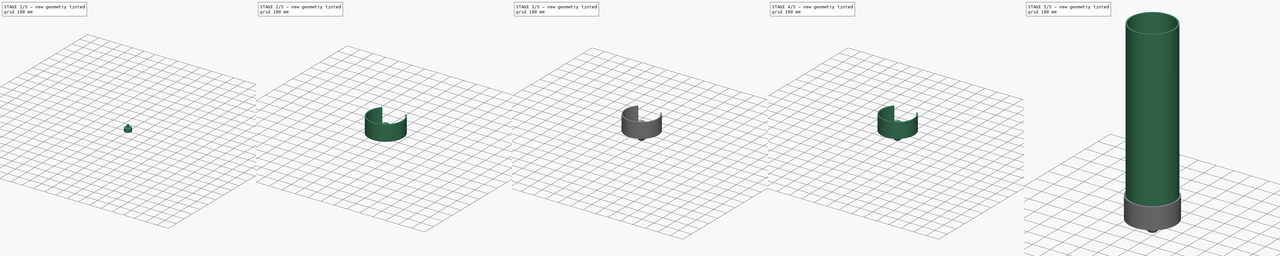
[diagram: build sequence overview — one tinted view per stage of 5, left to right]
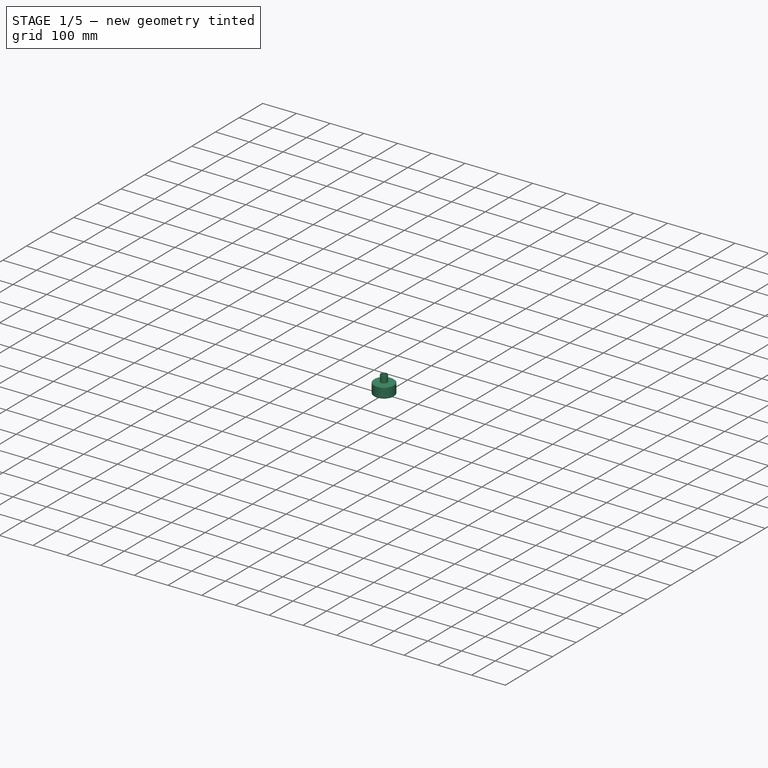
[diagram: stage 1 of 5 — iso view after this stage's code; geometry added in this stage tinted green]
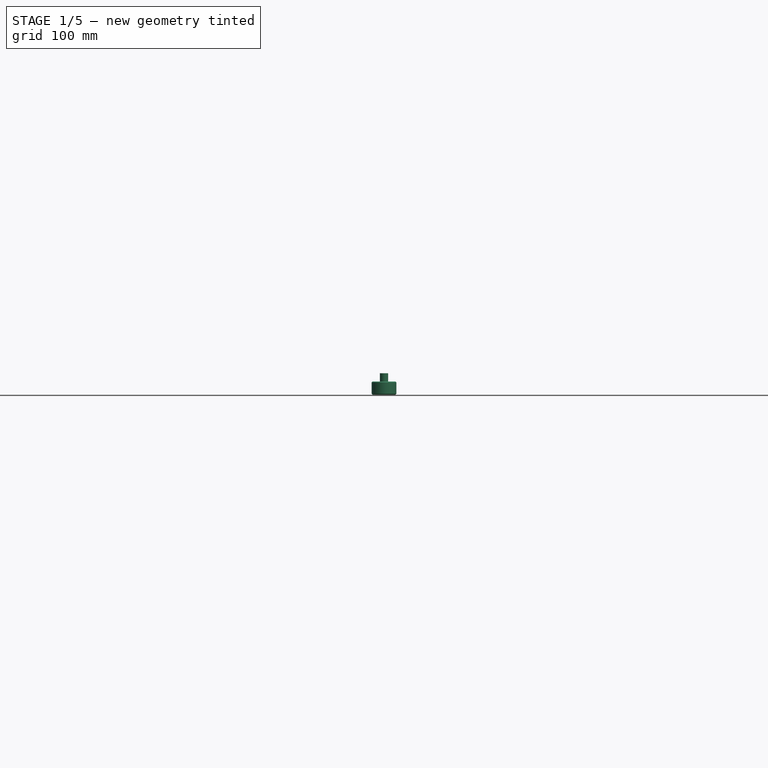
[diagram: stage 1 of 5 — front view after this stage's code; geometry added in this stage tinted green]
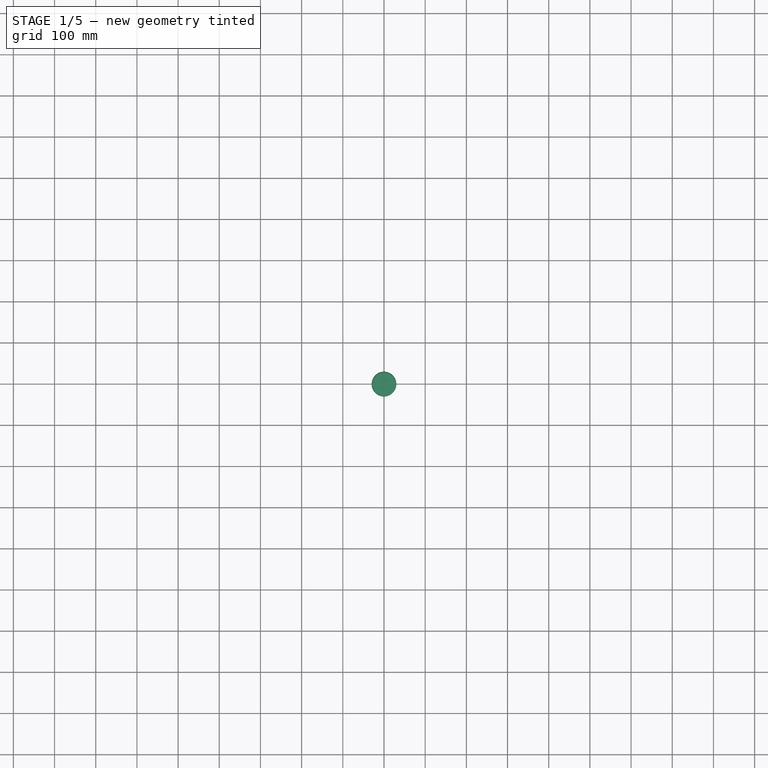
[diagram: stage 1 of 5 — top view after this stage's code; geometry added in this stage tinted green]
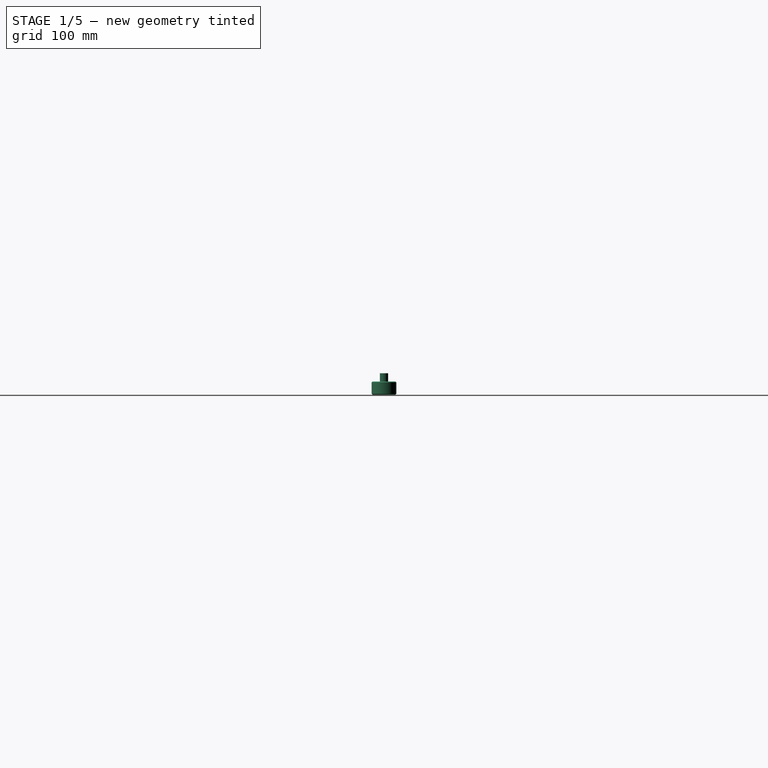
[diagram: stage 1 of 5 — right view after this stage's code; geometry added in this stage tinted green]
FCSTD DOCUMENT  (FreeCAD 0.18.4R)
Label: Assy2
License: All rights reserved
LicenseURL: http://en.wikipedia.org/wiki/All_rights_reserved
objects: PartDesign::Body×17, PartDesign::Pad×11, Sketcher::SketchObject×7, PartDesign::AdditiveCylinder×6, App::Part×6, PartDesign::SubtractiveCylinder×4, PartDesign::AdditiveSphere×4, PartDesign::Chamfer×4, Spreadsheet::Sheet×1
note: 78 computed .brp shape members not serialized (recipe doc carries the construction recipe); baked Part::Feature solids carry a one-line shape summary decoded from their .brp

FEATURE [PartDesign::Body] Body012  label="HV clamp lower"
  Group = -> [Pad004,Pad005]
  Origin = -> Origin018
  Placement = pos=(0,-187.7,-36) rot=(0,0,1;3.14159rad)
  Tip = -> Pad005
  expr: Placement.Base.y = -Spreadsheet.hv_clamp_socket_h - Spreadsheet.hv_clamp_h - Spreadsheet.pole_clamp_R
  expr: Placement.Base.z = -Spreadsheet.hv_clamp_l - Spreadsheet.hv_clamp_distance
FEATURE [App::Part] Part  label="Clamp_Pole"
  Group = -> [Body010,Body011,Body012]
  Origin = -> Origin
FEATURE [App::Part] Part002  label="Multiplyer_Stage_1"
  Group = -> [Part,Part001]
  Origin = -> Origin019
  Placement = pos=(0,0,0) rot=(0,0,1;-0.228406rad)
  expr: Placement.Rotation.Angle = Spreadsheet.stage_rotation
FEATURE [Sketcher::SketchObject] Sketch004
  MapMode = 5
  Placement = pos=(0,0,0) rot=(0,0,1;1.5708rad)
  expr: Constraints[1] = Spreadsheet.KG_D / 2 + (Spreadsheet.KG_D - Spreadsheet.KG_d) / 2
  expr: Constraints[0] = Spreadsheet.KG_d / 2 + (Spreadsheet.KG_D - Spreadsheet.KG_d) / 2
  sketch-geometry (4):
    g0: ArcOfCircle CenterX=0 CenterY=0 CenterZ=0 NormalX=0 NormalY=0 NormalZ=1 AngleXU=0 Radius=125 StartAngle=0.785398 EndAngle=5.49779
    g1: ArcOfCircle CenterX=0 CenterY=0 CenterZ=0 NormalX=0 NormalY=0 NormalZ=1 AngleXU=0 Radius=132.7 StartAngle=0.785398 EndAngle=5.49779
    g2: LineSegment StartX=88.3883 StartY=-88.3883 StartZ=0 EndX=93.8331 EndY=-93.8331 EndZ=0
    g3: LineSegment StartX=93.8331 StartY=93.8331 StartZ=0 EndX=88.3883 EndY=88.3883 EndZ=0
  constraints (12):
    c: Radius(g0) = 125
    c: Radius(g1) = 132.7
    c: Coincident(g-1,g0)
    c: Coincident(g0,g1)
    c: Coincident(g2,g0)
    c: Coincident(g2,g1)
    c: Coincident(g3,g1)
    c: Coincident(g3,g0)
    c: Angle(g3) = -2.35619
    c: Perpendicular(g0,g3)
    c: Angle(g2) = -0.785398
    c: Perpendicular(g0,g2)
FEATURE [PartDesign::AdditiveCylinder] Cylinder013
  Angle = 360
  AttacherType = Attacher::AttachEngine3D
  AttachmentOffset = pos=(0,0,16) rot=(0,0,1;0rad)
  Height = 20
  MapMode = 5
  Placement = pos=(0,0,16) rot=(0,0,1;0rad)
  Radius = 10
  Refine = true
  Support = -> [XY_Plane015]
  expr: AttachmentOffset.Base.z = Spreadsheet.murata_l / 2
  expr: Height = Spreadsheet.tube_l
  expr: Radius = Spreadsheet.tube_D / 2
FEATURE [PartDesign::SubtractiveCylinder] Cylinder012
  Angle = 360
  AttacherType = Attacher::AttachEngine3D
  AttachmentOffset = pos=(0,0,16) rot=(0,0,1;0rad)
  BaseFeature = -> Cylinder013
  Height = 20
  MapMode = 5
  Placement = pos=(0,0,16) rot=(0,0,1;0rad)
  Radius = 9
  Refine = true
  Support = -> [XY_Plane015]
  expr: Radius = Spreadsheet.tube_d / 2
  expr: Height = Spreadsheet.tube_l
  expr: AttachmentOffset.Base.z = Spreadsheet.murata_l / 2
FEATURE [PartDesign::Body] Body016  label="Sphere_upper001"
  Group = -> [Sphere005]
  Origin = -> Origin027
  Placement = pos=(0,0,34) rot=(0,0,1;0rad)
  Tip = -> Sphere005
  expr: Placement.Base.z = Spreadsheet.ball_steel_D / 2 - 1
FEATURE [PartDesign::AdditiveCylinder] Cylinder014
  Angle = 360
  AttacherType = Attacher::AttachEngine3D
  AttachmentOffset = pos=(0,0,-16) rot=(0,0,1;0rad)
  Height = 32
  MapMode = 5
  Placement = pos=(0,0,-16) rot=(0,0,1;0rad)
  Radius = 30
  Refine = true
  Support = -> [XY_Plane016]
  expr: AttachmentOffset.Base.z = -Spreadsheet.murata_l / 2
  expr: Height = Spreadsheet.murata_l
  expr: Radius = Spreadsheet.murata_D / 2
FEATURE [PartDesign::Chamfer] Chamfer002
  Base = -> Cylinder014 [Edge1]
  BaseFeature = -> Cylinder014
  Placement = pos=(0,0,-16) rot=(0,0,1;0rad)
  Size = 2
FEATURE [PartDesign::Body] Body017  label="Tube_lower001"
  Group = -> [Cylinder015,Cylinder011]
  Tip = -> Cylinder011
FEATURE [PartDesign::Body] Body018  label="Clamp_Body001"
  Group = -> [Sketch004,Pad007]
  Origin = -> Origin029
  Placement = pos=(0,0,-60) rot=(0,0,1;0rad)
  Tip = -> Pad007
  expr: Placement.Base.z = -Spreadsheet.pole_clamp_l / 2
FEATURE [PartDesign::Pad] Pad010
  Length = 16
  Length2 = 100
  Profile = -> Sketch006
  Refine = true
  Type = 0
  expr: Length = Spreadsheet.hv_clamp_l
FEATURE [PartDesign::Body] Body013  label="HV clamp lower001"
  Group = -> [Pad010,Pad009]
  Origin = -> Origin025
  Placement = pos=(0,-187.7,-36) rot=(0,0,1;3.14159rad)
  Tip = -> Pad009
  expr: Placement.Base.y = -Spreadsheet.hv_clamp_socket_h - Spreadsheet.hv_clamp_h - Spreadsheet.pole_clamp_R
  expr: Placement.Base.z = -Spreadsheet.hv_clamp_l - Spreadsheet.hv_clamp_distance
FEATURE [App::Part] Part004  label="Clamp_Pole001"
  Group = -> [Body018,Body015,Body013]
  Origin = -> Origin028
FEATURE [PartDesign::Chamfer] Chamfer003
  Base = -> Chamfer002 [Edge3]
  BaseFeature = -> Chamfer002
  Placement = pos=(0,0,-16) rot=(0,0,1;0rad)
  Size = 2
FEATURE [PartDesign::Body] Body019  label="Murata_C001"
  Group = -> [Cylinder014,Chamfer002,Chamfer003]
  Origin = -> Origin020
  Tip = -> Chamfer003
FEATURE [PartDesign::Body] Body020  label="Tuber_upper001"
  Group = -> [Cylinder013,Cylinder012]
  Origin = -> Origin023
  Tip = -> Cylinder012
FEATURE [App::Part] Part005  label="Capacitor_Element001"
  Group = -> [Body019,Body017,Body020,Body014,Body016]
  Origin = -> Origin024
  Placement = pos=(0,-187.7,0) rot=(0,0,1;0rad)
  expr: Placement.Base.y = -Spreadsheet.hv_clamp_socket_h - Spreadsheet.hv_clamp_h - Spreadsheet.pole_clamp_R
FEATURE [App::Part] Part003  label="Multiplyer_Stage_2"
  Group = -> [Part004,Part005]
  Origin = -> Origin022
  Placement = pos=(0,0,142) rot=(0,0,1;0.228406rad)
  expr: Placement.Base.z = Spreadsheet.stage_length
  expr: Placement.Rotation.Angle = -Spreadsheet.stage_rotation
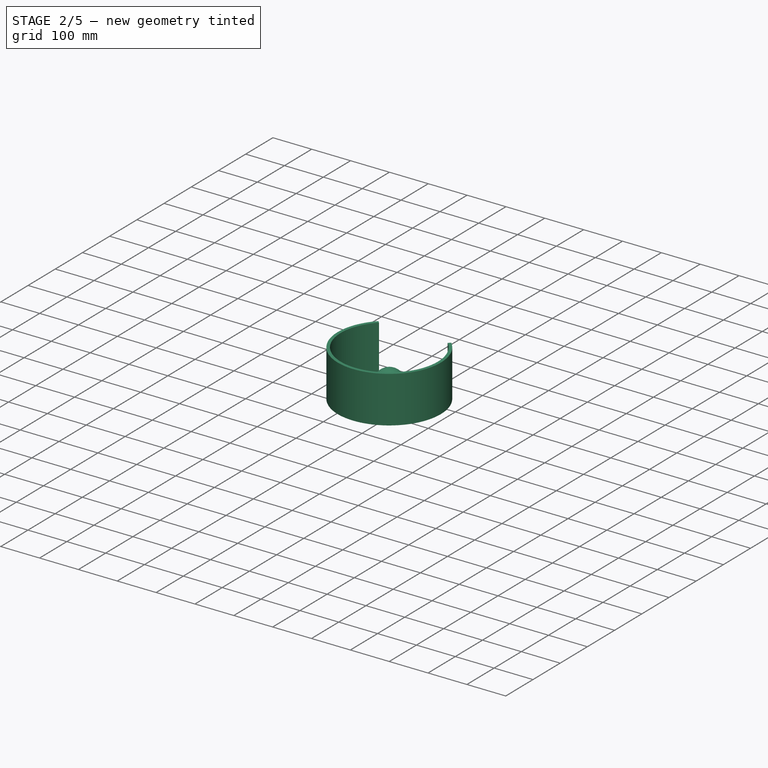
[diagram: stage 2 of 5 — iso view after this stage's code; geometry added in this stage tinted green]
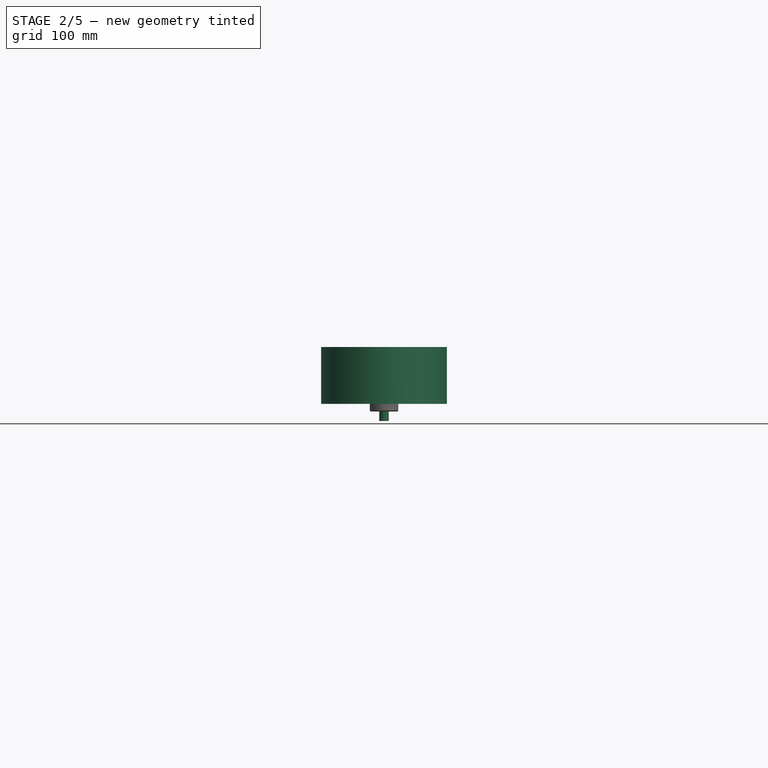
[diagram: stage 2 of 5 — front view after this stage's code; geometry added in this stage tinted green]
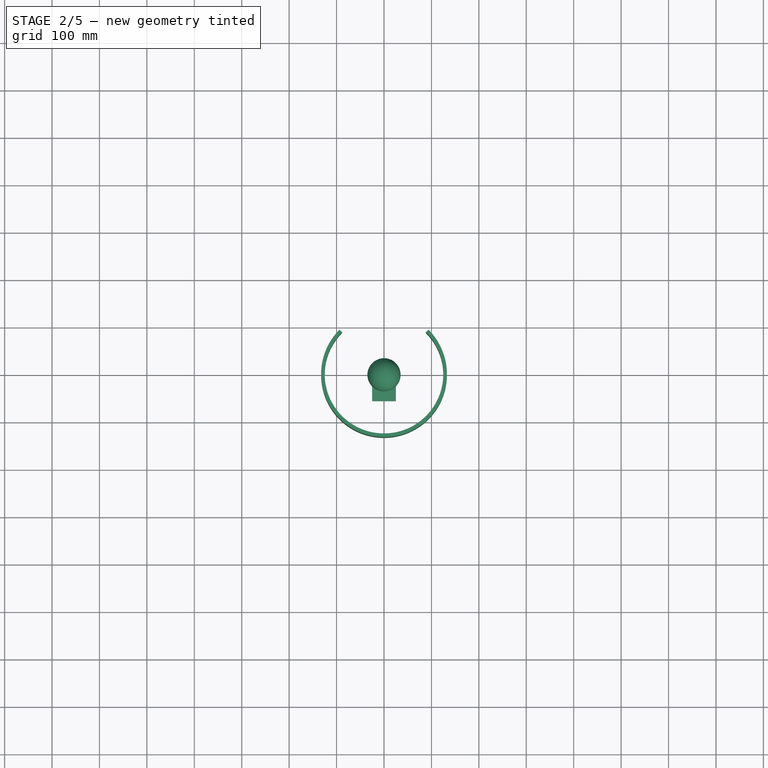
[diagram: stage 2 of 5 — top view after this stage's code; geometry added in this stage tinted green]
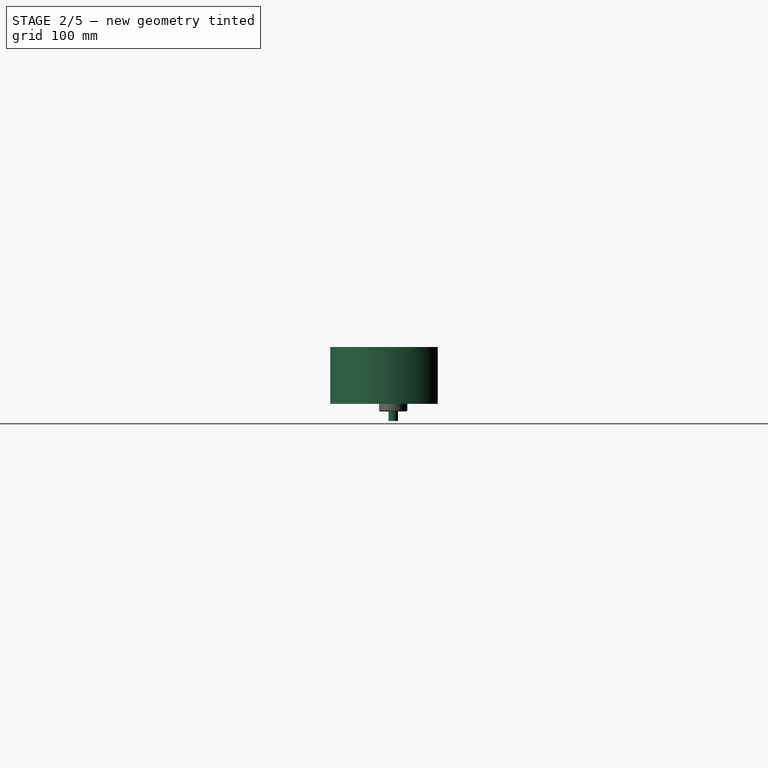
[diagram: stage 2 of 5 — right view after this stage's code; geometry added in this stage tinted green]
FEATURE [PartDesign::Pad] Pad007
  Length = 120
  Length2 = 100
  Placement = pos=(0,0,0) rot=(0,0,1;1.5708rad)
  Profile = -> Sketch004
  Refine = true
  Type = 0
  expr: Length = Spreadsheet.pole_clamp_l
FEATURE [PartDesign::Body] Body014  label="Sphere_lower001"
  Group = -> [Sphere004]
  Origin = -> Origin026
  Placement = pos=(0,0,-34) rot=(0,0,1;0rad)
  Tip = -> Sphere004
  expr: Placement.Base.z = -(Spreadsheet.ball_steel_D / 2 - 1)
FEATURE [Sketcher::SketchObject] Sketch006
  MapMode = 5
  Support = -> [XY_Plane017]
  expr: Constraints[23] = Spreadsheet.hv_clamp_h
  expr: Constraints[22] = Spreadsheet.hv_clamp_h
  expr: Constraints[21] = Spreadsheet.hv_clamp_h
  sketch-geometry (8):
    g0: LineSegment StartX=15 StartY=-20 StartZ=0 EndX=-15 EndY=-20 EndZ=0
    g1: LineSegment StartX=-15 StartY=-20 StartZ=0 EndX=-15 EndY=-1.78e-14 EndZ=0
    g2: LineSegment StartX=15 StartY=-20 StartZ=0 EndX=15 EndY=0 EndZ=0
    g3: LineSegment StartX=-11.1803 StartY=10 StartZ=0 EndX=-7.63657 EndY=6.45623 EndZ=0
    g4: LineSegment StartX=11.1803 StartY=10 StartZ=0 EndX=7.63657 EndY=6.45623 EndZ=0
    g5: ArcOfCircle CenterX=0 CenterY=0 CenterZ=0 NormalX=0 NormalY=0 NormalZ=1 AngleXU=0 Radius=15 StartAngle=0 EndAngle=0.729728
    g6: ArcOfCircle CenterX=0 CenterY=0 CenterZ=0 NormalX=0 NormalY=0 NormalZ=1 AngleXU=0 Radius=10 StartAngle=2.43975 EndAngle=6.98502
    g7: ArcOfCircle CenterX=0 CenterY=0 CenterZ=0 NormalX=0 NormalY=0 NormalZ=1 AngleXU=0 Radius=15 StartAngle=2.41186 EndAngle=3.14159
  constraints (24):
    c: Horizontal(g0)
    c: Distance(g0) = 30
    c: Distance(g3,g0) = 30
    c: Coincident(g1,g0)
    c: Vertical(g1)
    c: Coincident(g2,g0)
    c: Distance(g4,g0) = 30
    c: Angle(g3) = -0.785398
    c: Angle(g4) = -2.35619
    c: Coincident(g5,g4)
    c: Diameter(g5) = 30
    c: Vertical(g2)
    c: Coincident(g5,g2)
    c: Coincident(g6,g3)
    c: Coincident(g4,g6)
    c: Diameter(g6) = 20
    c: Coincident(g7,g3)
    c: Coincident(g7,g1)
    c: Coincident(g7,g5)
    c: Coincident(g5,g6)
    c: Coincident(g-1,g5)
    c: Distance(g1) = 20
    c: Distance(g2,g0) = 20
    c: Distance(g5,g0) = 20
FEATURE [PartDesign::Pad] Pad008
  Length = 16
  Length2 = 100
  Profile = -> Sketch006
  Refine = true
  Type = 0
  expr: Length = Spreadsheet.hv_clamp_l
FEATURE [PartDesign::Body] Body015  label="HV clamp upper001"
  Group = -> [Sketch006,Pad008,Sketch005,Pad006]
  Origin = -> Origin021
  Placement = pos=(0,-187.7,20) rot=(0,0,1;3.14159rad)
  Tip = -> Pad006
  expr: Placement.Base.z = Spreadsheet.hv_clamp_distance
FEATURE [PartDesign::AdditiveSphere] Sphere005
  Angle1 = -90
  Angle2 = 90
  Angle3 = 360
  AttacherType = Attacher::AttachEngine3D
  AttachmentOffset = pos=(0,0,36) rot=(0,0,1;0rad)
  MapMode = 5
  Placement = pos=(0,0,36) rot=(0,0,1;0rad)
  Radius = 35
  Refine = true
  Support = -> [XY_Plane012]
  expr: Radius = Spreadsheet.ball_steel_D / 2
  expr: AttachmentOffset.Base.z = Spreadsheet.murata_l / 2 + Spreadsheet.tube_l
FEATURE [PartDesign::AdditiveCylinder] Cylinder015
  Angle = 360
  AttacherType = Attacher::AttachEngine3D
  AttachmentOffset = pos=(0,0,16) rot=(0,0,1;0rad)
  Height = 20
  MapMode = 5
  Placement = pos=(0,0,-16) rot=(0,1,0;3.14159rad)
  Radius = 10
  Refine = true
  Support = -> [XY_Plane015]
  expr: AttachmentOffset.Base.z = Spreadsheet.murata_l / 2
  expr: Height = Spreadsheet.tube_l
  expr: Radius = Spreadsheet.tube_D / 2
FEATURE [PartDesign::SubtractiveCylinder] Cylinder011
  Angle = 360
  AttacherType = Attacher::AttachEngine3D
  AttachmentOffset = pos=(0,0,-36) rot=(0,0,1;0rad)
  BaseFeature = -> Cylinder015
  Height = 20
  MapMode = 5
  Placement = pos=(0,0,-36) rot=(0,0,1;0rad)
  Radius = 9
  Refine = true
  Support = -> [XY_Plane015]
  expr: AttachmentOffset.Base.z = -Spreadsheet.murata_l / 2 - Spreadsheet.tube_l
  expr: Height = Spreadsheet.tube_l
  expr: Radius = Spreadsheet.tube_d / 2
FEATURE [PartDesign::Pad] Pad009
  BaseFeature = -> Pad010
  Length = 35
  Length2 = 100
  Profile = -> Sketch005
  Refine = true
  Type = 0
  expr: Length = Spreadsheet.hv_clamp_socket_h
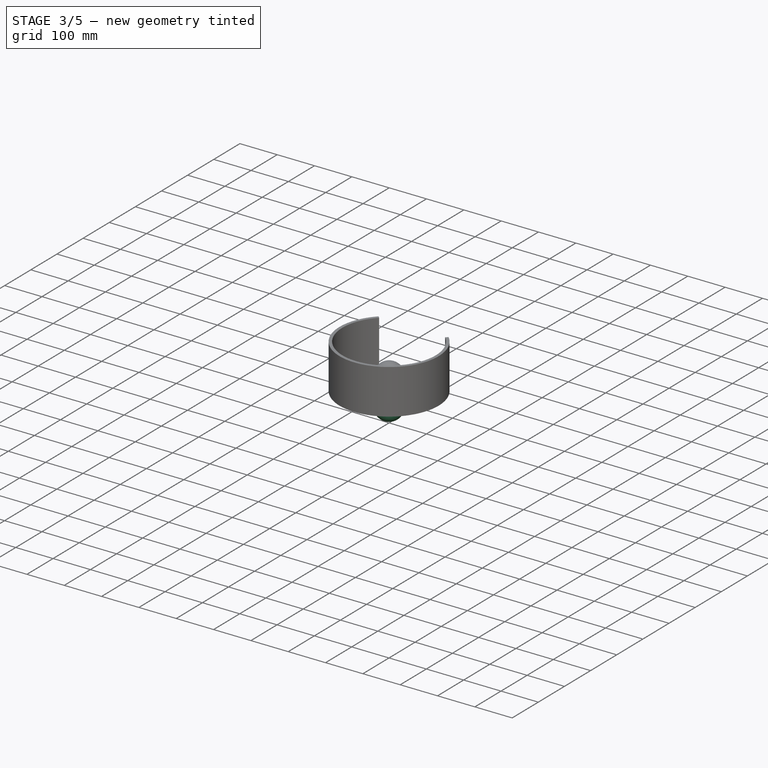
[diagram: stage 3 of 5 — iso view after this stage's code; geometry added in this stage tinted green]
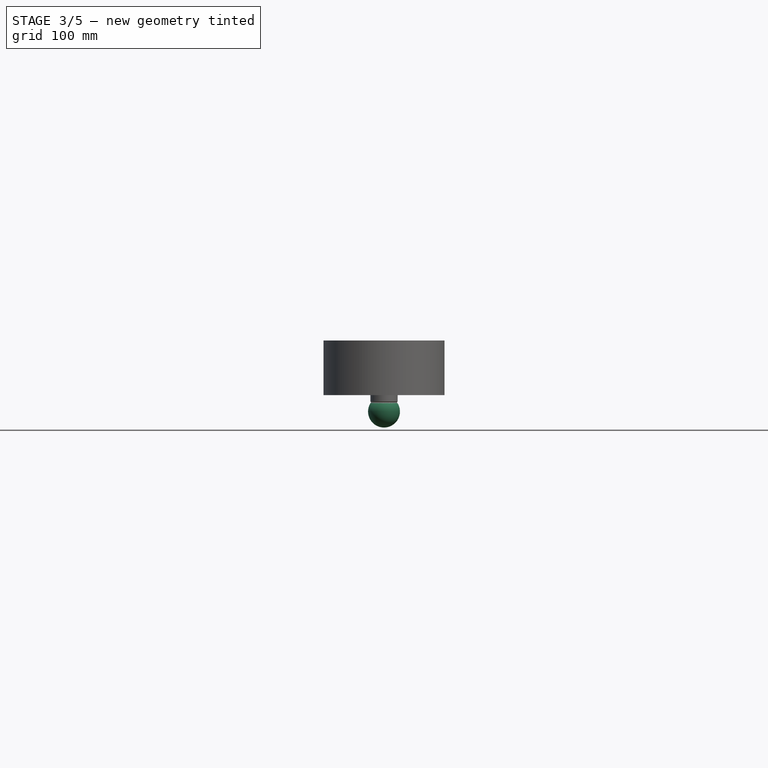
[diagram: stage 3 of 5 — front view after this stage's code; geometry added in this stage tinted green]
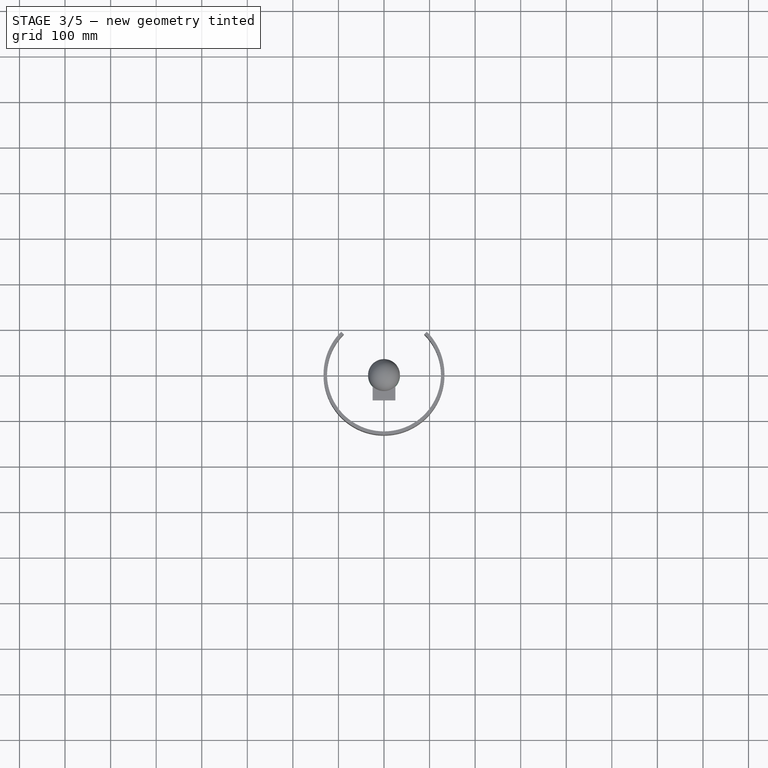
[diagram: stage 3 of 5 — top view after this stage's code; geometry added in this stage tinted green]
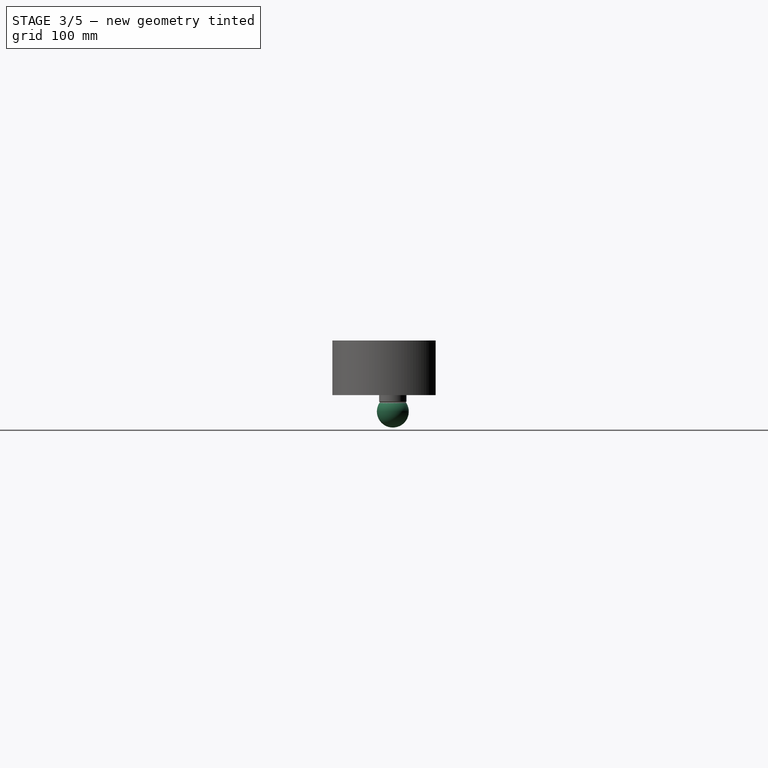
[diagram: stage 3 of 5 — right view after this stage's code; geometry added in this stage tinted green]
FEATURE [PartDesign::Body] Body010  label="Clamp_Body"
  Group = -> [Sketch001,Pad001]
  Origin = -> Origin016
  Placement = pos=(0,0,-60) rot=(0,0,1;0rad)
  Tip = -> Pad001
  expr: Placement.Base.z = -Spreadsheet.pole_clamp_l / 2
FEATURE [Sketcher::SketchObject] Sketch002
  MapMode = 5
  Support = -> [XY_Plane009]
  expr: Constraints[23] = Spreadsheet.hv_clamp_h
  expr: Constraints[22] = Spreadsheet.hv_clamp_h
  expr: Constraints[21] = Spreadsheet.hv_clamp_h
  sketch-geometry (8):
    g0: LineSegment StartX=15 StartY=-20 StartZ=0 EndX=-15 EndY=-20 EndZ=0
    g1: LineSegment StartX=-15 StartY=-20 StartZ=0 EndX=-15 EndY=-1.78e-14 EndZ=0
    g2: LineSegment StartX=15 StartY=-20 StartZ=0 EndX=15 EndY=0 EndZ=0
    g3: LineSegment StartX=-11.1803 StartY=10 StartZ=0 EndX=-7.63657 EndY=6.45623 EndZ=0
    g4: LineSegment StartX=11.1803 StartY=10 StartZ=0 EndX=7.63657 EndY=6.45623 EndZ=0
    g5: ArcOfCircle CenterX=0 CenterY=0 CenterZ=0 NormalX=0 NormalY=0 NormalZ=1 AngleXU=0 Radius=15 StartAngle=0 EndAngle=0.729728
    g6: ArcOfCircle CenterX=0 CenterY=0 CenterZ=0 NormalX=0 NormalY=0 NormalZ=1 AngleXU=0 Radius=10 StartAngle=2.43975 EndAngle=6.98502
    g7: ArcOfCircle CenterX=0 CenterY=0 CenterZ=0 NormalX=0 NormalY=0 NormalZ=1 AngleXU=0 Radius=15 StartAngle=2.41186 EndAngle=3.14159
  constraints (24):
    c: Horizontal(g0)
    c: Distance(g0) = 30
    c: Distance(g3,g0) = 30
    c: Coincident(g1,g0)
    c: Vertical(g1)
    c: Coincident(g2,g0)
    c: Distance(g4,g0) = 30
    c: Angle(g3) = -0.785398
    c: Angle(g4) = -2.35619
    c: Coincident(g5,g4)
    c: Diameter(g5) = 30
    c: Vertical(g2)
    c: Coincident(g5,g2)
    c: Coincident(g6,g3)
    c: Coincident(g4,g6)
    c: Diameter(g6) = 20
    c: Coincident(g7,g3)
    c: Coincident(g7,g1)
    c: Coincident(g7,g5)
    c: Coincident(g5,g6)
    c: Coincident(g-1,g5)
    c: Distance(g1) = 20
    c: Distance(g2,g0) = 20
    c: Distance(g5,g0) = 20
FEATURE [PartDesign::Pad] Pad002
  Length = 16
  Length2 = 100
  Profile = -> Sketch002
  Refine = true
  Type = 0
  expr: Length = Spreadsheet.hv_clamp_l
FEATURE [PartDesign::Body] Body011  label="HV clamp upper"
  Group = -> [Sketch002,Pad002,Sketch003,Pad003]
  Origin = -> Origin017
  Placement = pos=(0,-187.7,20) rot=(0,0,1;3.14159rad)
  Tip = -> Pad003
  expr: Placement.Base.y = -Spreadsheet.hv_clamp_socket_h - Spreadsheet.hv_clamp_h - Spreadsheet.pole_clamp_R
  expr: Placement.Base.z = Spreadsheet.hv_clamp_distance
FEATURE [PartDesign::Pad] Pad004
  Length = 16
  Length2 = 100
  Profile = -> Sketch002
  Refine = true
  Type = 0
  expr: Length = Spreadsheet.hv_clamp_l
FEATURE [PartDesign::Pad] Pad005
  BaseFeature = -> Pad004
  Length = 35
  Length2 = 100
  Profile = -> Sketch003
  Refine = true
  Type = 0
  expr: Length = Spreadsheet.hv_clamp_socket_h
FEATURE [PartDesign::AdditiveSphere] Sphere004
  Angle1 = -90
  Angle2 = 90
  Angle3 = 360
  AttacherType = Attacher::AttachEngine3D
  AttachmentOffset = pos=(0,0,36) rot=(0,0,1;0rad)
  MapMode = 5
  Placement = pos=(0,0,-36) rot=(0,1,0;3.14159rad)
  Radius = 35
  Refine = true
  Support = -> [XY_Plane015]
  expr: Radius = Spreadsheet.ball_steel_D / 2
  expr: AttachmentOffset.Base.z = Spreadsheet.murata_l / 2 + Spreadsheet.tube_l
FEATURE [Sketcher::SketchObject] Sketch005
  MapMode = 5
  Placement = pos=(0,-20,0) rot=(1,0,0;1.5708rad)
  Support = -> [Pad008]
  expr: Constraints[10] = Spreadsheet.hv_clamp_socket_w
  expr: Constraints[8] = Spreadsheet.hv_clamp_l
  sketch-geometry (4):
    g0: LineSegment StartX=-25 StartY=16 StartZ=0 EndX=25 EndY=16 EndZ=0
    g1: LineSegment StartX=25 StartY=16 StartZ=0 EndX=25 EndY=0 EndZ=0
    g2: LineSegment StartX=25 StartY=0 StartZ=0 EndX=-25 EndY=0 EndZ=0
    g3: LineSegment StartX=-25 StartY=0 StartZ=0 EndX=-25 EndY=16 EndZ=0
  constraints (11):
    c: Coincident(g0,g1)
    c: Coincident(g1,g2)
    c: Coincident(g2,g3)
    c: Coincident(g3,g0)
    c: Horizontal(g0)
    c: Horizontal(g2)
    c: Vertical(g1)
    c: Vertical(g3)
    c: Distance(g3) = 16
    c: Symmetric(g2,g1,g-1)
    c: Distance(g2) = 50
FEATURE [PartDesign::Pad] Pad006
  BaseFeature = -> Pad008
  Length = 35
  Length2 = 100
  Profile = -> Sketch005
  Refine = true
  Type = 0
  expr: Length = Spreadsheet.hv_clamp_socket_h
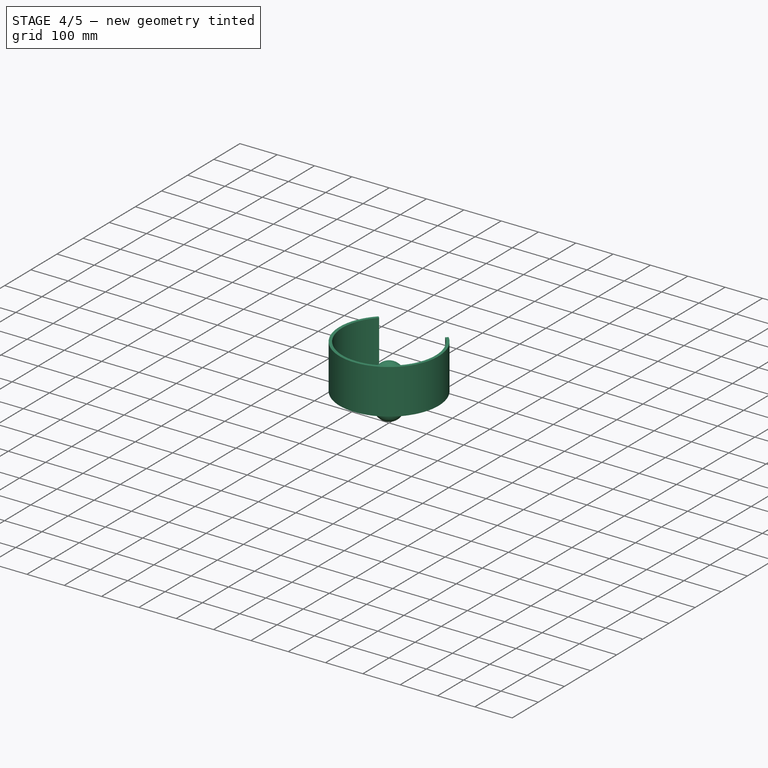
[diagram: stage 4 of 5 — iso view after this stage's code; geometry added in this stage tinted green]
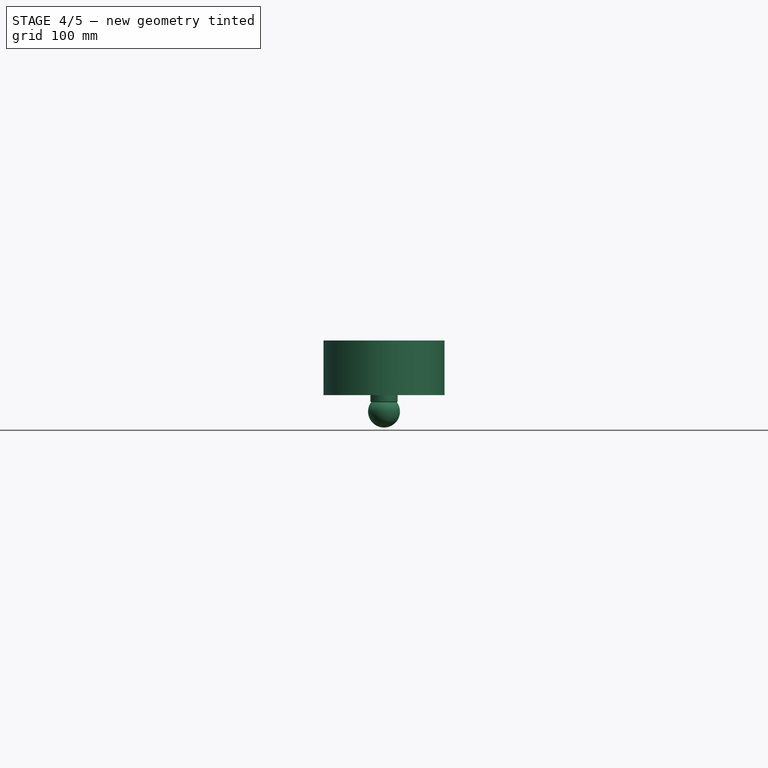
[diagram: stage 4 of 5 — front view after this stage's code; geometry added in this stage tinted green]
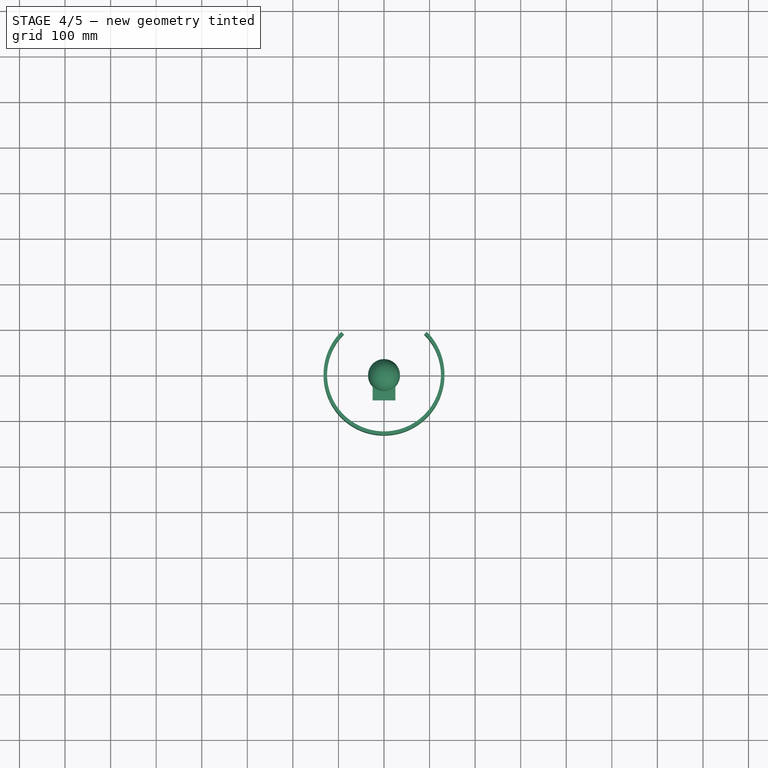
[diagram: stage 4 of 5 — top view after this stage's code; geometry added in this stage tinted green]
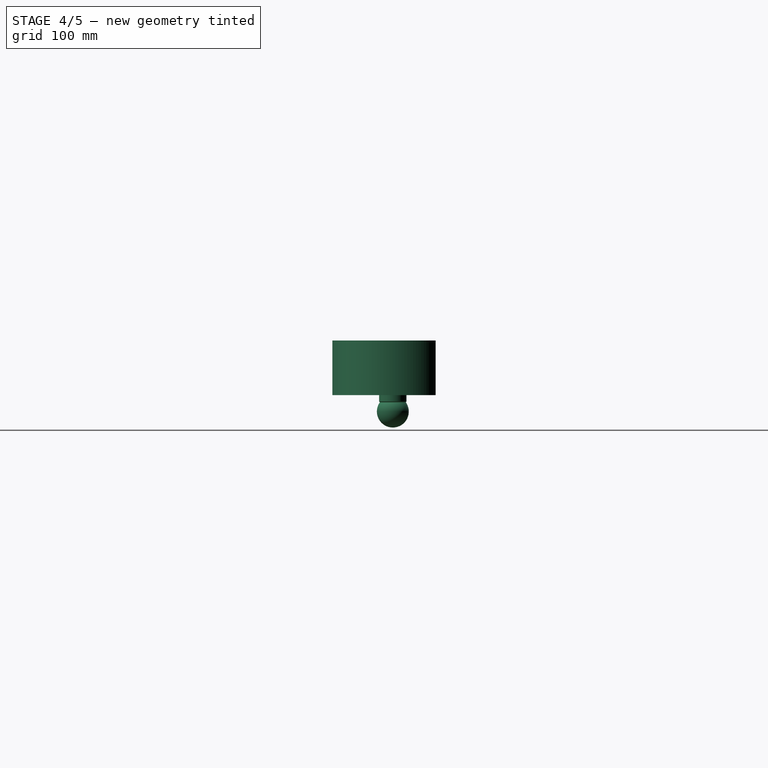
[diagram: stage 4 of 5 — right view after this stage's code; geometry added in this stage tinted green]
FEATURE [PartDesign::Body] Body  label="pole"
  Group = -> [Sketch,Pad]
  Origin = -> Origin001
  Tip = -> Pad
FEATURE [Sketcher::SketchObject] Sketch001
  MapMode = 5
  Placement = pos=(0,0,0) rot=(0,0,1;1.5708rad)
  expr: Constraints[10] = -Spreadsheet.pole_clamp_degrees / 2
  expr: Constraints[8] = Spreadsheet.pole_clamp_degrees / 2 - 180
  expr: Constraints[1] = Spreadsheet.KG_D / 2 + (Spreadsheet.KG_D - Spreadsheet.KG_d) / 2
  expr: Constraints[0] = Spreadsheet.KG_d / 2 + (Spreadsheet.KG_D - Spreadsheet.KG_d) / 2
  sketch-geometry (4):
    g0: ArcOfCircle CenterX=0 CenterY=0 CenterZ=0 NormalX=0 NormalY=0 NormalZ=1 AngleXU=0 Radius=125 StartAngle=0.785398 EndAngle=5.49779
    g1: ArcOfCircle CenterX=0 CenterY=0 CenterZ=0 NormalX=0 NormalY=0 NormalZ=1 AngleXU=0 Radius=132.7 StartAngle=0.785398 EndAngle=5.49779
    g2: LineSegment StartX=88.3883 StartY=-88.3883 StartZ=0 EndX=93.8331 EndY=-93.8331 EndZ=0
    g3: LineSegment StartX=93.8331 StartY=93.8331 StartZ=0 EndX=88.3883 EndY=88.3883 EndZ=0
  constraints (12):
    c: Radius(g0) = 125
    c: Radius(g1) = 132.7
    c: Coincident(g-1,g0)
    c: Coincident(g0,g1)
    c: Coincident(g2,g0)
    c: Coincident(g2,g1)
    c: Coincident(g3,g1)
    c: Coincident(g3,g0)
    c: Angle(g3) = -2.35619
    c: Perpendicular(g0,g3)
    c: Angle(g2) = -0.785398
    c: Perpendicular(g0,g2)
FEATURE [PartDesign::AdditiveCylinder] Cylinder003
  Angle = 360
  AttacherType = Attacher::AttachEngine3D
  AttachmentOffset = pos=(0,0,-16) rot=(0,0,1;0rad)
  Height = 32
  MapMode = 5
  Placement = pos=(0,0,-16) rot=(0,0,1;0rad)
  Radius = 30
  Refine = true
  Support = -> [XY_Plane003]
  expr: AttachmentOffset.Base.z = -Spreadsheet.murata_l / 2
  expr: Height = Spreadsheet.murata_l
  expr: Radius = Spreadsheet.murata_D / 2
FEATURE [PartDesign::Body] Body008  label="Sphere_lower"
  Group = -> [Sphere002]
  Origin = -> Origin014
  Placement = pos=(0,0,-34) rot=(0,0,1;0rad)
  Tip = -> Sphere002
  expr: Placement.Base.z = -(Spreadsheet.ball_steel_D / 2 - 1)
FEATURE [PartDesign::AdditiveSphere] Sphere003
  Angle1 = -90
  Angle2 = 90
  Angle3 = 360
  AttacherType = Attacher::AttachEngine3D
  AttachmentOffset = pos=(0,0,36) rot=(0,0,1;0rad)
  MapMode = 5
  Placement = pos=(0,0,36) rot=(0,0,1;0rad)
  Radius = 35
  Refine = true
  Support = -> [XY_Plane006]
  expr: Radius = Spreadsheet.ball_steel_D / 2
  expr: AttachmentOffset.Base.z = Spreadsheet.murata_l / 2 + Spreadsheet.tube_l
FEATURE [PartDesign::Body] Body009  label="Sphere_upper"
  Group = -> [Sphere003]
  Origin = -> Origin015
  Placement = pos=(0,0,34) rot=(0,0,1;0rad)
  Tip = -> Sphere003
  expr: Placement.Base.z = Spreadsheet.ball_steel_D / 2 - 1
FEATURE [PartDesign::Chamfer] Chamfer
  Base = -> Cylinder003 [Edge1]
  BaseFeature = -> Cylinder003
  Placement = pos=(0,0,-16) rot=(0,0,1;0rad)
  Size = 2
FEATURE [PartDesign::Chamfer] Chamfer001
  Base = -> Chamfer [Edge3]
  BaseFeature = -> Chamfer
  Placement = pos=(0,0,-16) rot=(0,0,1;0rad)
  Size = 2
FEATURE [PartDesign::Body] Body005  label="Murata_C"
  Group = -> [Cylinder003,Chamfer,Chamfer001]
  Origin = -> Origin010
  Tip = -> Chamfer001
FEATURE [App::Part] Part001  label="Capacitor_Element"
  Group = -> [Body005,Body006,Body007,Body008,Body009]
  Origin = -> Origin012
  Placement = pos=(0,-187.7,0) rot=(0,0,1;0rad)
  expr: Placement.Base.y = -Spreadsheet.hv_clamp_socket_h - Spreadsheet.hv_clamp_h - Spreadsheet.pole_clamp_R
FEATURE [PartDesign::Pad] Pad001
  Length = 120
  Length2 = 100
  Placement = pos=(0,0,0) rot=(0,0,1;1.5708rad)
  Profile = -> Sketch001
  Refine = true
  Type = 0
  expr: Length = Spreadsheet.pole_clamp_l
FEATURE [Sketcher::SketchObject] Sketch003
  MapMode = 5
  Placement = pos=(0,-20,0) rot=(1,0,0;1.5708rad)
  Support = -> [Pad002]
  expr: Constraints[10] = Spreadsheet.hv_clamp_socket_w
  expr: Constraints[8] = Spreadsheet.hv_clamp_l
  sketch-geometry (4):
    g0: LineSegment StartX=-25 StartY=16 StartZ=0 EndX=25 EndY=16 EndZ=0
    g1: LineSegment StartX=25 StartY=16 StartZ=0 EndX=25 EndY=0 EndZ=0
    g2: LineSegment StartX=25 StartY=0 StartZ=0 EndX=-25 EndY=0 EndZ=0
    g3: LineSegment StartX=-25 StartY=0 StartZ=0 EndX=-25 EndY=16 EndZ=0
  constraints (11):
    c: Coincident(g0,g1)
    c: Coincident(g1,g2)
    c: Coincident(g2,g3)
    c: Coincident(g3,g0)
    c: Horizontal(g0)
    c: Horizontal(g2)
    c: Vertical(g1)
    c: Vertical(g3)
    c: Distance(g3) = 16
    c: Symmetric(g2,g1,g-1)
    c: Distance(g2) = 50
FEATURE [PartDesign::Pad] Pad003
  BaseFeature = -> Pad002
  Length = 35
  Length2 = 100
  Profile = -> Sketch003
  Refine = true
  Type = 0
  expr: Length = Spreadsheet.hv_clamp_socket_h
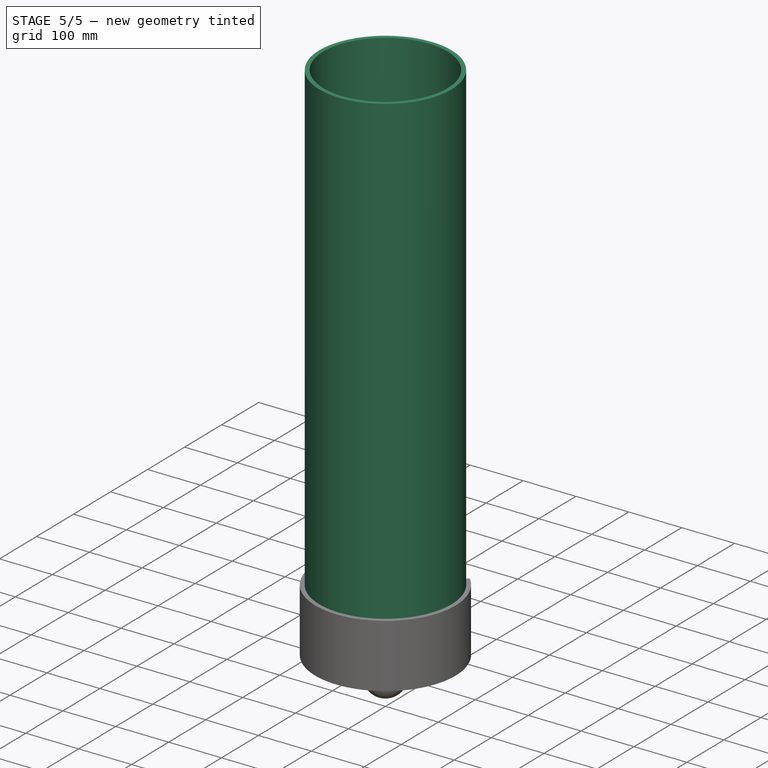
[diagram: stage 5 of 5 — iso view after this stage's code; geometry added in this stage tinted green]
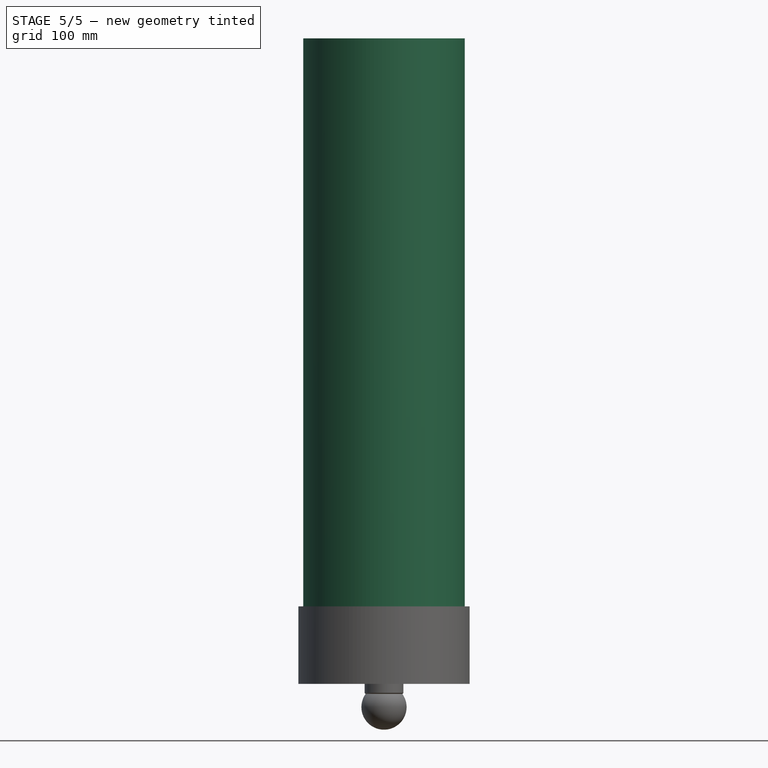
[diagram: stage 5 of 5 — front view after this stage's code; geometry added in this stage tinted green]
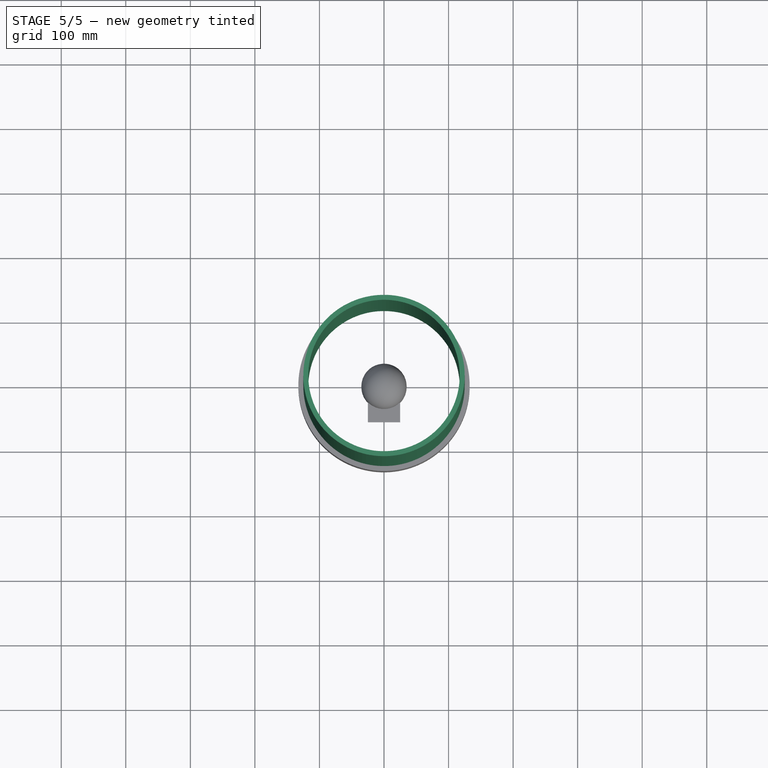
[diagram: stage 5 of 5 — top view after this stage's code; geometry added in this stage tinted green]
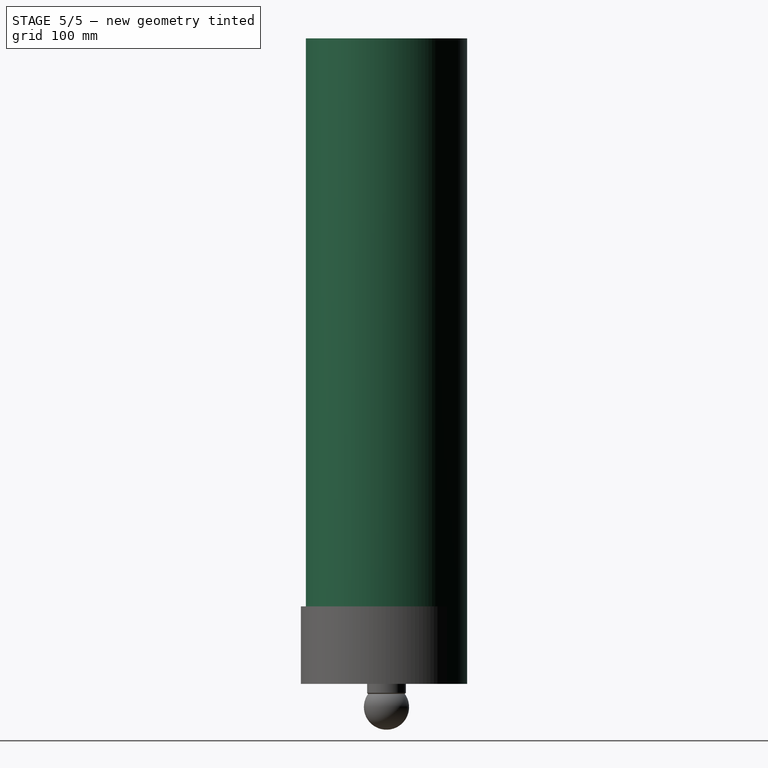
[diagram: stage 5 of 5 — right view after this stage's code; geometry added in this stage tinted green]
FEATURE [Spreadsheet::Sheet] Spreadsheet
  cells = A1=spark gap; B1(spark_gap)=15; A2=stage rotation; B2(stage_rotation)==asin((spark_gap + ball_steel_D) / (2 * stage_center_offset)); C2=Rotation of left stages column in negative direction and righ column in positive direction; A3=stage center offset; B3(stage_center_offset)==-hv_clamp_socket_h - hv_clamp_h - pole_clamp_R; C3=Offset of capacitor stage center of rotation from pole vertical center; A4=stage length; B4(stage_length)==murata_l + 2 * tube_l + ball_steel_D; A6=ball_steel D; B6(ball_steel_D)=70; A8=tube D; B8(tube_D)=20; A9=tube d; B9(tube_d)=18; A10=tube l; B10(tube_l)=20; A12=Murata D; B12(murata_D)=60; A13=Murata l; B13(murata_l)=32; A15=res_100k D; B15(res_100k_D)=11; A16=res_100k l; B16(res_100k_l)=147; A18=KG D; B18(KG_D)=250; A19=KG d; B19(KG_d)==250 - 2 * 7.7; A20=KG l; B20(KG_l)=1000; A22=pole clamp l; B22(pole_clamp_l)=120; A23=pole clamp degrees; B23(pole_clamp_degrees)=90; A24=pole clamp R; B24(pole_clamp_R)==Spreadsheet.KG_D / 2 + (Spreadsheet.KG_D - Spreadsheet.KG_d) / 2; A26=HV_Clamp l; B26(hv_clamp_l)=16; A27=HV_Clamp h; B27(hv_clamp_h)=20; A29=HV clamp socket w; B29(hv_clamp_socket_w)=50; A30=HV clamp socket h; B30(hv_clamp_socket_h)=35; A31=HV clamp distance; B31(hv_clamp_distance)=20
FEATURE [Sketcher::SketchObject] Sketch
  MapMode = 5
  Support = -> [XY_Plane001]
  expr: Constraints[3] = Spreadsheet.KG_D / 2
  expr: Constraints[2] = Spreadsheet.KG_d / 2
  sketch-geometry (2):
    g0: Circle CenterX=0 CenterY=0 CenterZ=0 NormalX=0 NormalY=0 NormalZ=1 AngleXU=0 Radius=117.3
    g1: Circle CenterX=0 CenterY=0 CenterZ=0 NormalX=0 NormalY=0 NormalZ=1 AngleXU=0 Radius=125
  constraints (4):
    c: Coincident(g0,g-1)
    c: Coincident(g1,g0)
    c: Radius(g0) = 117.3
    c: Radius(g1) = 125
FEATURE [PartDesign::Pad] Pad
  Length = 1000
  Length2 = 100
  Profile = -> Sketch
  Refine = true
  Type = 0
  expr: Length = Spreadsheet.KG_l
FEATURE [PartDesign::AdditiveCylinder] Cylinder006
  Angle = 360
  AttacherType = Attacher::AttachEngine3D
  AttachmentOffset = pos=(0,0,16) rot=(0,0,1;0rad)
  Height = 20
  MapMode = 5
  Placement = pos=(0,0,-16) rot=(0,1,0;3.14159rad)
  Radius = 10
  Refine = true
  Support = -> [XY_Plane004]
  expr: AttachmentOffset.Base.z = Spreadsheet.murata_l / 2
  expr: Height = Spreadsheet.tube_l
  expr: Radius = Spreadsheet.tube_D / 2
FEATURE [PartDesign::SubtractiveCylinder] Cylinder007
  Angle = 360
  AttacherType = Attacher::AttachEngine3D
  AttachmentOffset = pos=(0,0,-36) rot=(0,0,1;0rad)
  BaseFeature = -> Cylinder006
  Height = 20
  MapMode = 5
  Placement = pos=(0,0,-36) rot=(0,0,1;0rad)
  Radius = 9
  Refine = true
  Support = -> [XY_Plane004]
  expr: AttachmentOffset.Base.z = -Spreadsheet.murata_l / 2 - Spreadsheet.tube_l
  expr: Height = Spreadsheet.tube_l
  expr: Radius = Spreadsheet.tube_d / 2
FEATURE [PartDesign::Body] Body006  label="Tube_lower"
  Group = -> [Cylinder006,Cylinder007]
  Tip = -> Cylinder007
FEATURE [PartDesign::AdditiveCylinder] Cylinder009
  Angle = 360
  AttacherType = Attacher::AttachEngine3D
  AttachmentOffset = pos=(0,0,16) rot=(0,0,1;0rad)
  Height = 20
  MapMode = 5
  Placement = pos=(0,0,16) rot=(0,0,1;0rad)
  Radius = 10
  Refine = true
  Support = -> [XY_Plane004]
  expr: AttachmentOffset.Base.z = Spreadsheet.murata_l / 2
  expr: Height = Spreadsheet.tube_l
  expr: Radius = Spreadsheet.tube_D / 2
FEATURE [PartDesign::SubtractiveCylinder] Cylinder010
  Angle = 360
  AttacherType = Attacher::AttachEngine3D
  AttachmentOffset = pos=(0,0,16) rot=(0,0,1;0rad)
  BaseFeature = -> Cylinder009
  Height = 20
  MapMode = 5
  Placement = pos=(0,0,16) rot=(0,0,1;0rad)
  Radius = 9
  Refine = true
  Support = -> [XY_Plane004]
  expr: Radius = Spreadsheet.tube_d / 2
  expr: Height = Spreadsheet.tube_l
  expr: AttachmentOffset.Base.z = Spreadsheet.murata_l / 2
FEATURE [PartDesign::Body] Body007  label="Tuber_upper"
  Group = -> [Cylinder009,Cylinder010]
  Origin = -> Origin013
  Tip = -> Cylinder010
FEATURE [PartDesign::AdditiveSphere] Sphere002
  Angle1 = -90
  Angle2 = 90
  Angle3 = 360
  AttacherType = Attacher::AttachEngine3D
  AttachmentOffset = pos=(0,0,36) rot=(0,0,1;0rad)
  MapMode = 5
  Placement = pos=(0,0,-36) rot=(0,1,0;3.14159rad)
  Radius = 35
  Refine = true
  Support = -> [XY_Plane004]
  expr: Radius = Spreadsheet.ball_steel_D / 2
  expr: AttachmentOffset.Base.z = Spreadsheet.murata_l / 2 + Spreadsheet.tube_l
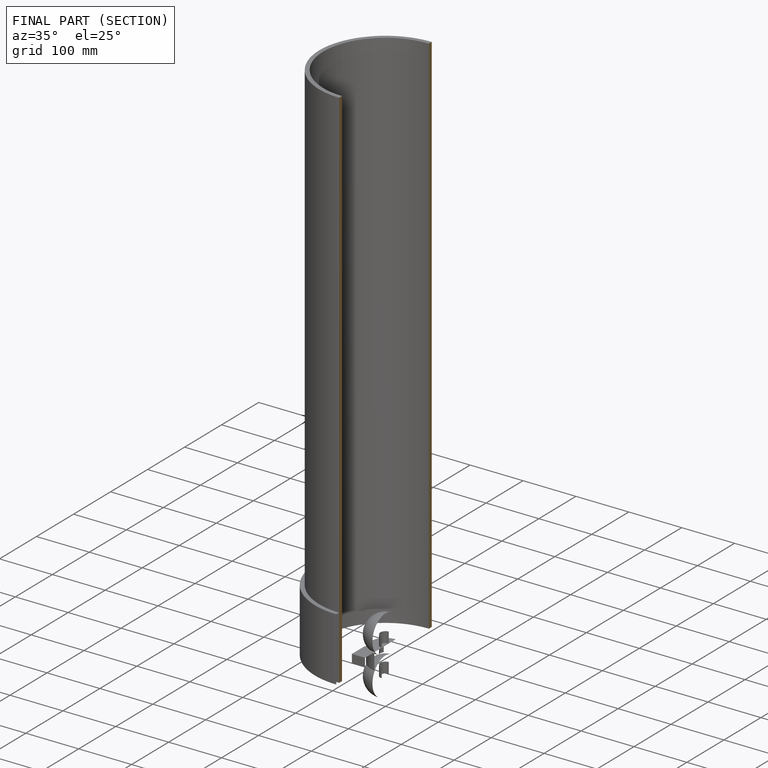
[diagram: finished part — half-section view (interior)]
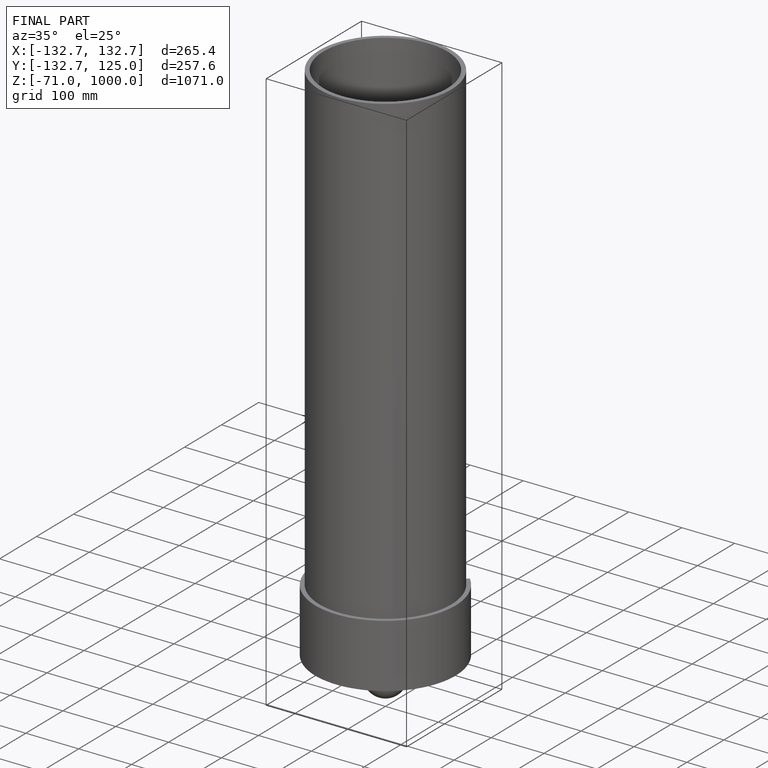
[diagram: finished part — iso view with bounding-box wireframe]
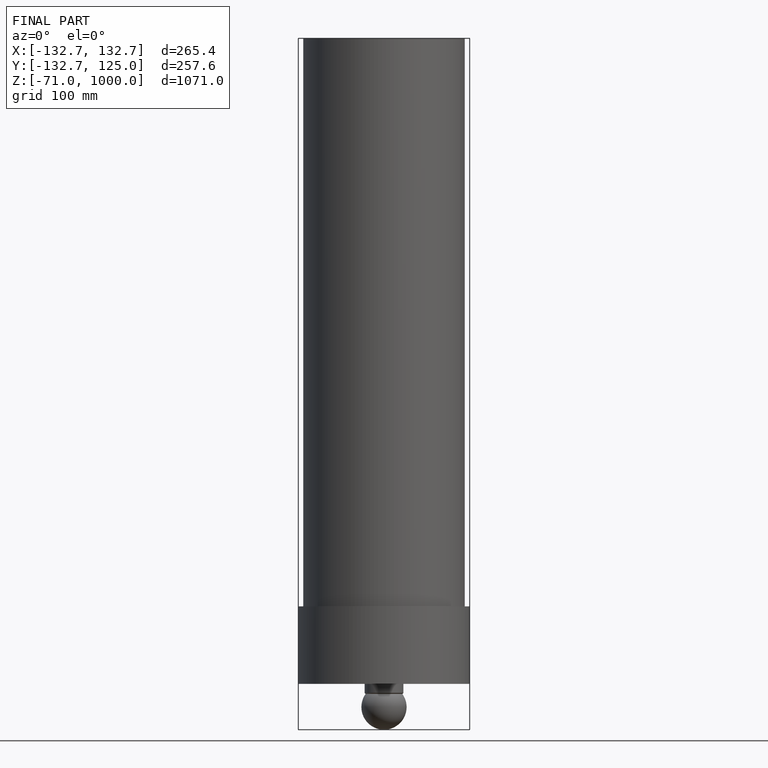
[diagram: finished part — front view with bounding-box wireframe]
